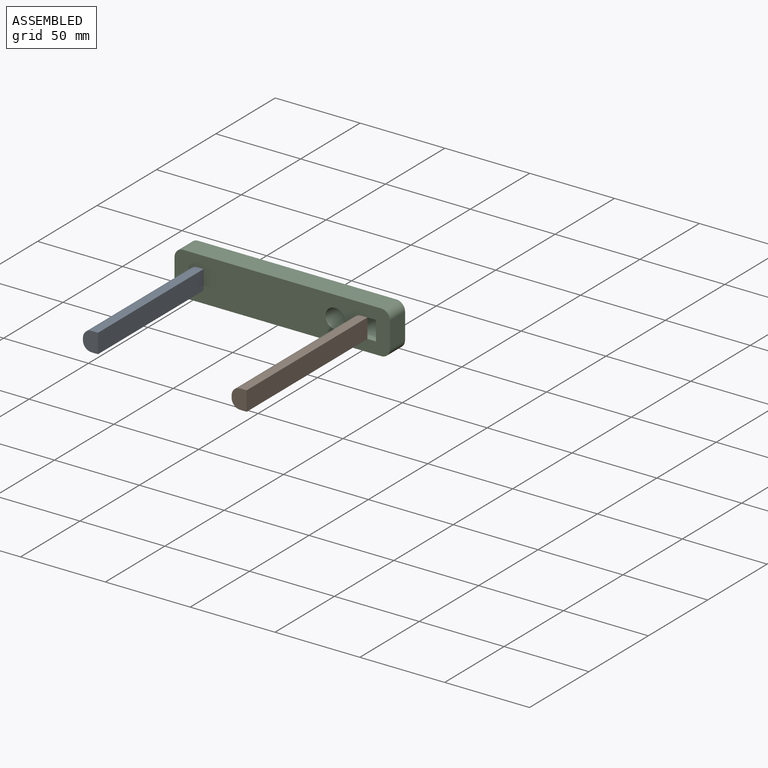
[diagram: assembled view]
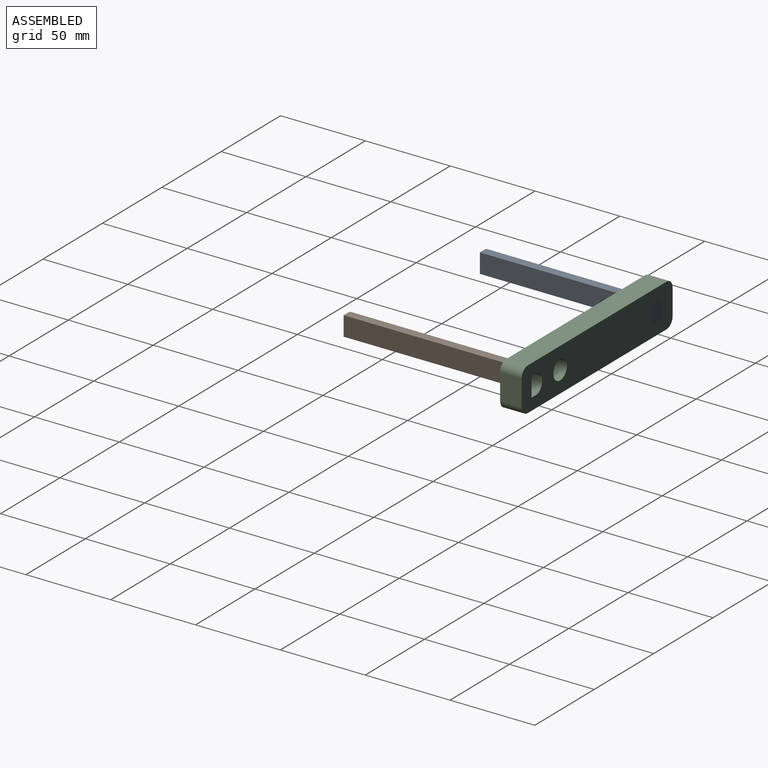
[diagram: assembled view, second angle]
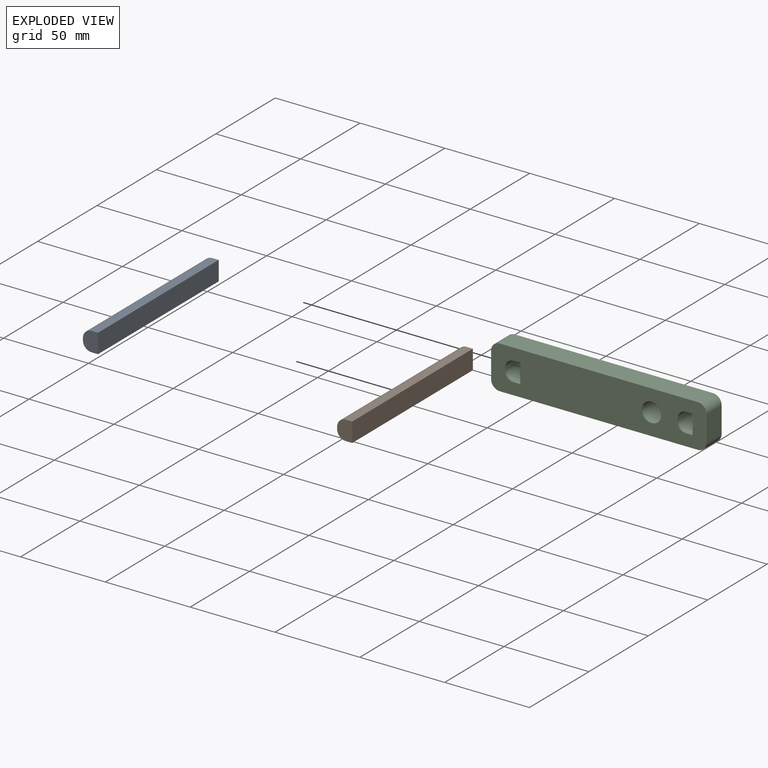
[diagram: exploded view]
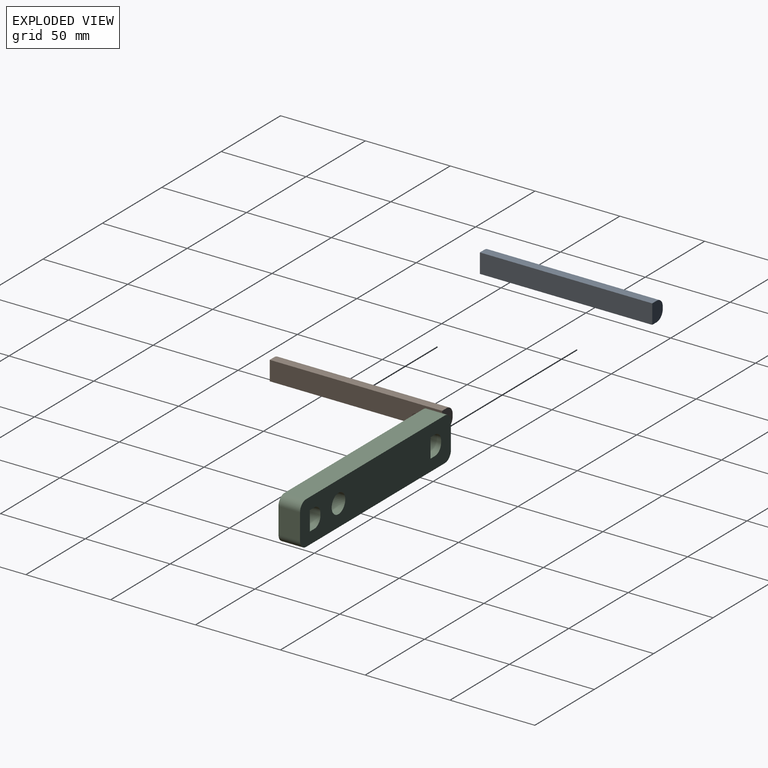
[diagram: exploded view, second angle]
ASSEMBLY  parts=3 mates=6
PART A: 8 faces, bbox 8.9x101.6x11.4 mm
  f0: plane 101.6x11.43mm, normal (1,0,0), area 1161.3mm2, adj f1,f3,f4,f5
  f1: plane 101.6x3.81mm, normal (0,0,1), area 387.1mm2, adj f0,f4,f5,f6
  f2: plane 101.6x1.27mm, normal (-1,0,0), area 129mm2, adj f4,f5,f6,f7
  f3: plane 101.6x3.81mm, normal (0,0,-1), area 387.1mm2, adj f0,f4,f5,f7
  f4: plane 11.43x8.89mm, normal (0,-1,0), area 90.5mm2, adj f0,f1,f2,f3,f6,f7
  f5: plane 11.43x8.89mm, normal (0,1,0), area 90.5mm2, adj f0,f1,f2,f3,f6,f7
  f6: cylinder r=5.08mm len=101.6mm, axis (0,1,0), area 810.7mm2, adj f1,f2,f4,f5
  f7: cylinder r=5.08mm len=101.6mm, axis (0,-1,0), area 810.7mm2, adj f2,f3,f4,f5
PART B: same geometry as A
PART C: 23 faces, bbox 127x25.4x12.7 mm
  f0: plane 127x25.4mm, normal (0,0,1), area 2920mm2, adj f2,f3,f4,f5,f6,f7,f8,f9
  f1: plane 127x25.4mm, normal (0,0,-1), area 2920mm2, adj f2,f3,f4,f5,f6,f7,f8,f9
  f2: plane 15.24x12.7mm, normal (1,0,0), area 193.5mm2, adj f0,f1,f19,f22
  f3: plane 116.84x12.7mm, normal (0,1,0), area 1483.9mm2, adj f0,f1,f19,f20
  f4: plane 15.24x12.7mm, normal (-1,0,0), area 193.5mm2, adj f0,f1,f20,f21
  f5: plane 116.84x12.7mm, normal (0,-1,0), area 1483.9mm2, adj f0,f1,f21,f22
  f6: plane 12.7x11.43mm, normal (-1,0,0), area 145.2mm2, adj f0,f1,f7,f9
  f7: plane 12.7x3.81mm, normal (0,-1,0), area 48.4mm2, adj f0,f1,f6,f17
  f8: plane 12.7x1.27mm, normal (1,0,0), area 16.1mm2, adj f0,f1,f17,f18
  f9: plane 12.7x3.81mm, normal (0,1,0), area 48.4mm2, adj f0,f1,f6,f18
  f10: plane 12.7x11.43mm, normal (-1,0,0), area 145.2mm2, adj f0,f1,f11,f13
  f11: plane 12.7x3.81mm, normal (0,-1,0), area 48.4mm2, adj f0,f1,f10,f15
  f12: plane 12.7x1.27mm, normal (1,0,0), area 16.1mm2, adj f0,f1,f15,f16
  f13: plane 12.7x3.81mm, normal (0,1,0), area 48.4mm2, adj f0,f1,f10,f16
  f14: cylinder r=5.71mm len=12.7mm, axis (0,0,1), area 456mm2, adj f0,f1
  f15: cylinder r=5.08mm len=12.7mm, axis (0,0,-1), area 101.3mm2, adj f0,f1,f11,f12
  f16: cylinder r=5.08mm len=12.7mm, axis (0,0,1), area 101.3mm2, adj f0,f1,f12,f13
  f17: cylinder r=5.08mm len=12.7mm, axis (0,0,-1), area 101.3mm2, adj f0,f1,f7,f8
  f18: cylinder r=5.08mm len=12.7mm, axis (0,0,1), area 101.3mm2, adj f0,f1,f8,f9
  f19: cylinder r=5.08mm len=12.7mm, axis (0,0,1), area 101.3mm2, adj f0,f1,f2,f3
  f20: cylinder r=5.08mm len=12.7mm, axis (0,0,-1), area 101.3mm2, adj f0,f1,f3,f4
  f21: cylinder r=5.08mm len=12.7mm, axis (0,0,1), area 101.3mm2, adj f0,f1,f4,f5
  f22: cylinder r=5.08mm len=12.7mm, axis (0,0,-1), area 101.3mm2, adj f0,f1,f2,f5
PLACE A t=(-44.8,45.87,-13.35)mm
PLACE B t=(51.72,33.17,-13.35)mm
PLACE C rot(axis=(1,0,0),90deg) t=(6,45.87,-13.35)mm
MATE parallel A.f5 <-> C.f1  axis (0,1,0) through (-44.4,45.87,-13.35)mm
MATE fastened C.f18 <-> A.f7  axis (0,1,0) through (-44.17,45.87,-13.99)mm
MATE parallel A.f0 <-> C.f6  axis (1,0,0) through (-40.36,-4.93,-13.35)mm
MATE parallel B.f0 <-> C.f10  axis (1,0,0) through (56.16,-17.63,-13.35)mm
MATE fastened B.f7 <-> C.f0  axis (0,-1,0) through (52.35,33.17,-13.99)mm
MATE parallel C.f1 <-> B.f5  axis (0,1,0) through (4.88,45.87,-13.35)mm
